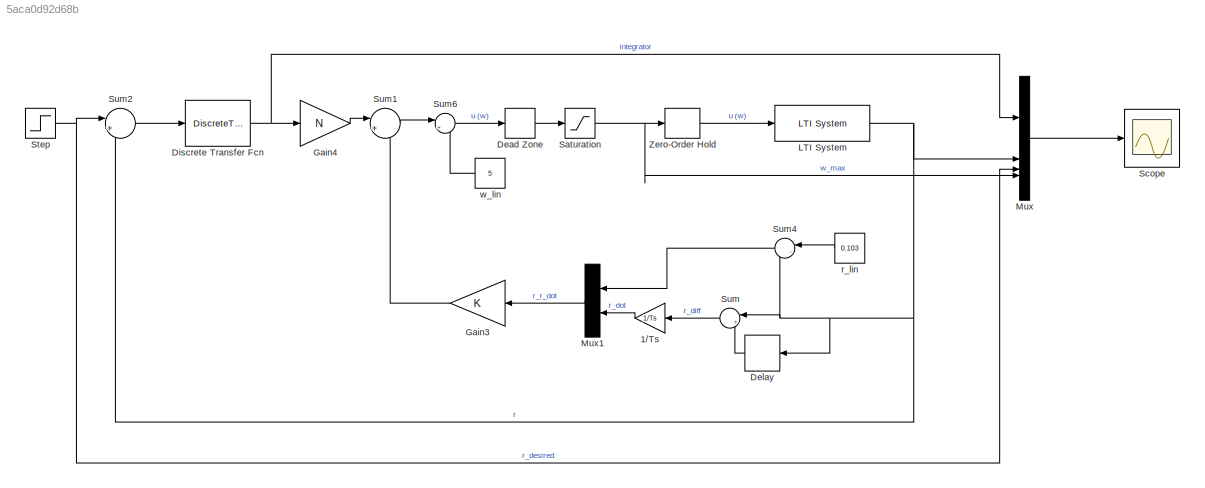
MODEL slx_5aca0d92d68b
KIND model
CONFIG AbsTol = auto
CONFIG EnableMultiTasking = off
CONFIG FixedStep = auto
CONFIG MaxStep = auto
CONFIG MinStep = auto
CONFIG RelTol = 1e-3
CONFIG SampleTimeConstraint = Unconstrained
CONFIG SolverName = VariableStepAuto
CONFIG StartTime = 0.0
CONFIG StopTime = 10
BLOCK [Gain] 1//Ts
  Gain = 1/Ts
BLOCK [DeadZone] Dead Zone
  LowerValue = -1.75*1.811
  UpperValue = 1.7*1.811
BLOCK [Delay] Delay
  DelayLength = 1
  InputPortMap = u0
  InputProcessing = Columns as channels (frame based)
BLOCK [DiscreteTransferFcn] Discrete Transfer Fcn
  CloseFcn = dspblkCoreblockFVToolHelper(gcbh,'close');
  CopyFcn = dspblkCoreblockFVToolHelper(gcbh,'copy');
  DeleteFcn = dspblkCoreblockFVToolHelper(gcbh,'close');
  Denominator = [1 -1]
  InputPortMap = u0
  LoadFcn = dspblkCoreblockFVToolHelper(gcbh,'load');
  ModelCloseFcn = dspblkCoreblockFVToolHelper(gcbh,'close');
  PostSaveFcn = dspblkCoreblockFVToolHelper(gcbh,'postsave');
  PreSaveFcn = dspblkCoreblockFVToolHelper(gcbh,'presave');
BLOCK [Gain] Gain3
  Gain = K
  Multiplication = Matrix(K*u)
  NameLocation = top
BLOCK [Gain] Gain4
  Gain = N
  Multiplication = Matrix(K*u)
BLOCK [Reference] LTI System  REF=cstblocks/LTI System
  SourceBlock = cstblocks/LTI System
  SourceType = LTI Block
BLOCK [Mux] Mux
  DisplayOption = bar
BLOCK [Mux] Mux1
  DisplayOption = bar
  Inputs = 2
BLOCK [Saturate] Saturation
  LowerLimit = -8.42*1.811
  UpperLimit = 8.30*1.811
BLOCK [Scope] Scope
  Floating = off
  NumInputPorts = 1
  ScopeSpecificationString = Simulink.scopes.TimeScopeBlockCfg('CurrentConfiguration', extmgr.ConfigurationSet(extmgr.Configuration('Core','General UI',true),extmgr.Configuration('Core','Source UI',true),extmgr.Configuration('Sources','WiredSimulink',true),extmgr.Configuration('Visuals','Time Domain',true,'SerializedDisplays',{struct('MinYLimReal','-0.22015','MaxYLimReal','0.5435','YLabelReal','','MinYLimMag','0.00000','MaxYL...<+1511ch>
BLOCK [Step] Step
  After = 0.13
  SampleTime = 0
BLOCK [Sum] Sum
  Inputs = |+-
BLOCK [Sum] Sum1
  Inputs = |++
BLOCK [Sum] Sum2
  Inputs = |+-
BLOCK [Sum] Sum4
  Inputs = |-+
BLOCK [Sum] Sum6
  Inputs = |++
BLOCK [ZeroOrderHold] Zero-Order Hold
  SampleTime = 0.01
BLOCK [Constant] r_lin
  Value = 0.103
BLOCK [Constant] w_lin
  Value = 5
LINE 1//Ts:1 -> Mux1:2
LINE Dead Zone:1 -> Saturation:1
LINE Delay:1 -> Sum:2
NET Discrete Transfer Fcn:1 -> Gain4:1, Mux:1
LINE Gain3:1 -> Sum1:2
LINE Gain4:1 -> Sum1:1
NET LTI System:1 -> Delay:1, Mux:2, Sum2:2, Sum4:2, Sum:1
LINE Mux1:1 -> Gain3:1
LINE Mux:1 -> Scope:1
NET Saturation:1 -> Mux:4, Zero-Order Hold:1
NET Step:1 -> Mux:3, Sum2:1
LINE Sum1:1 -> Sum6:1
LINE Sum2:1 -> Discrete Transfer Fcn:1
LINE Sum4:1 -> Mux1:1
LINE Sum6:1 -> Dead Zone:1
LINE Sum:1 -> 1//Ts:1
LINE Zero-Order Hold:1 -> LTI System:1
LINE r_lin:1 -> Sum4:1
LINE w_lin:1 -> Sum6:2
note: NET lines group one-source signal fan-out (src -> all destinations, sorted); 1:1 wires keep LINE
